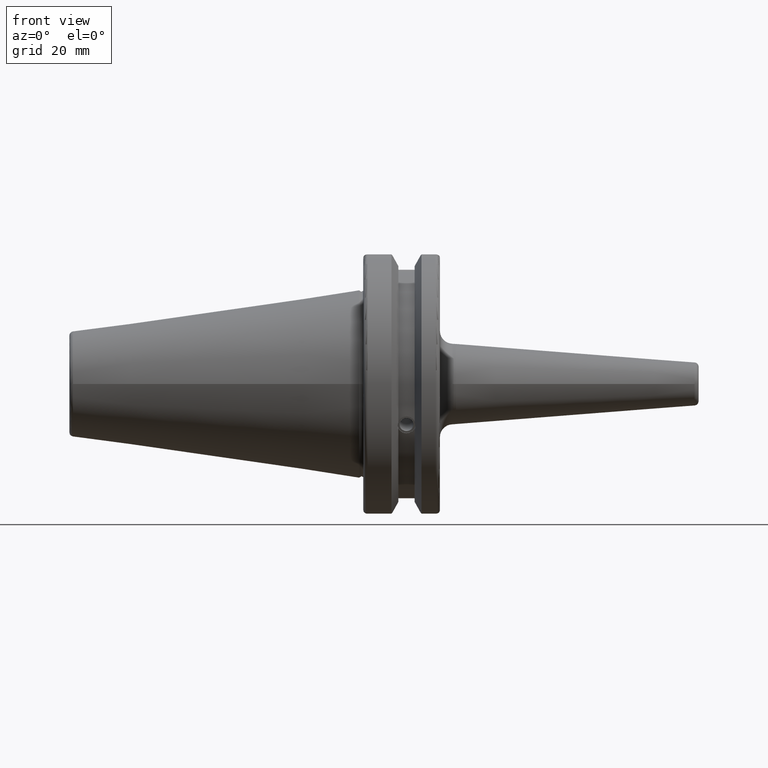
[diagram: clean part render]
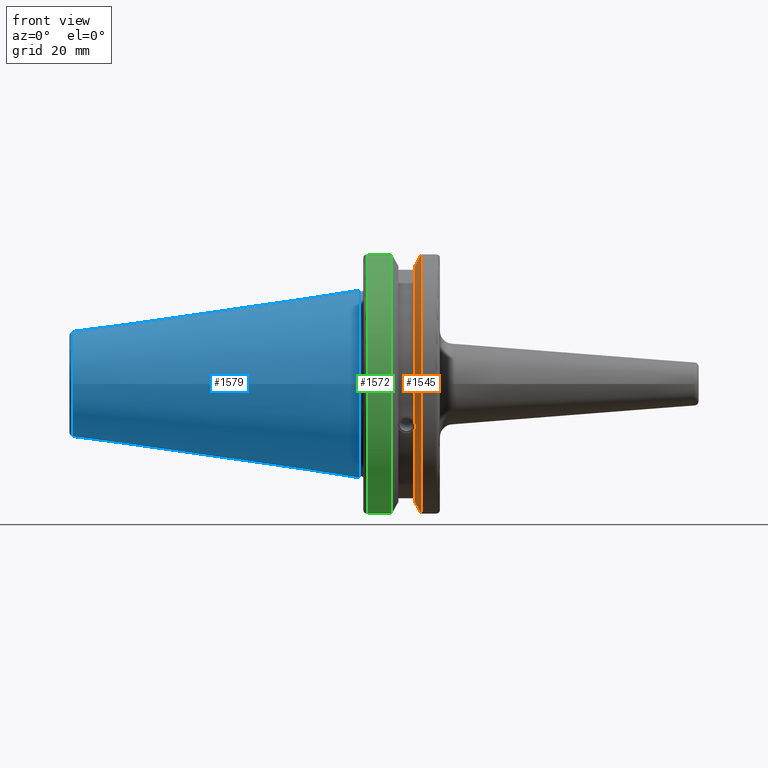
[diagram: same view with three faces highlighted in distinct colors, each labeled with its STEP entity id]
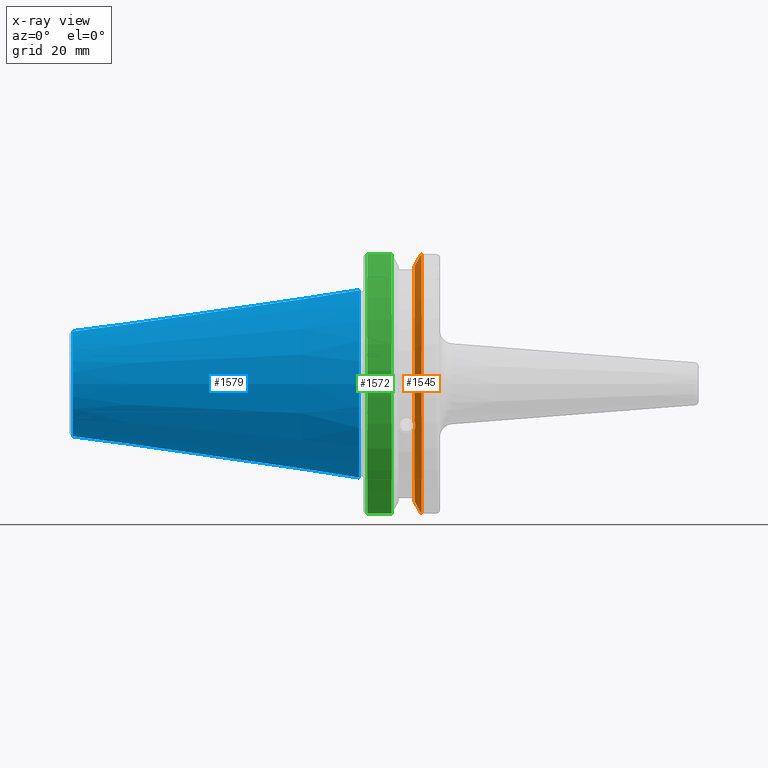
[diagram: x-ray of the same camera — body ghosted, the three highlighted faces saturated]
A machine part, front view with three faces highlighted in distinct colors.
The next image is the same camera in x-ray (body ghosted, the three faces saturated) — at least one of them is partly hidden behind the body in this view.
Their STEP definitions:

[orange] entity #1545 — the highlighted conical surface has half-angle 60 deg.
#18=(
BOUNDED_CURVE()
B_SPLINE_CURVE(2,(#2557,#2558,#2559),.UNSPECIFIED.,.F.,.F.)
B_SPLINE_CURVE_WITH_KNOTS((3,3),(0.,0.276549142796805),.UNSPECIFIED.)
CURVE()
GEOMETRIC_REPRESENTATION_ITEM()
RATIONAL_B_SPLINE_CURVE((1.,1.00095203904186,1.00031614445102))
REPRESENTATION_ITEM('')
);
#19=(
BOUNDED_CURVE()
B_SPLINE_CURVE(2,(#2561,#2562,#2563),.UNSPECIFIED.,.F.,.F.)
B_SPLINE_CURVE_WITH_KNOTS((3,3),(0.,0.0639048713676002),.UNSPECIFIED.)
CURVE()
GEOMETRIC_REPRESENTATION_ITEM()
RATIONAL_B_SPLINE_CURVE((1.,1.0002844421828,1.00047644010568))
REPRESENTATION_ITEM('')
);
#20=(
BOUNDED_CURVE()
B_SPLINE_CURVE(2,(#2567,#2568,#2569),.UNSPECIFIED.,.F.,.F.)
B_SPLINE_CURVE_WITH_KNOTS((3,3),(0.329353533631192,0.393258405001023),
 .UNSPECIFIED.)
CURVE()
GEOMETRIC_REPRESENTATION_ITEM()
RATIONAL_B_SPLINE_CURVE((1.00047644010581,1.00028444218288,1.))
REPRESENTATION_ITEM('')
);
#21=(
BOUNDED_CURVE()
B_SPLINE_CURVE(2,(#2571,#2572,#2573),.UNSPECIFIED.,.F.,.F.)
B_SPLINE_CURVE_WITH_KNOTS((3,3),(0.0550586467390284,0.331607789535849),
 .UNSPECIFIED.)
CURVE()
GEOMETRIC_REPRESENTATION_ITEM()
RATIONAL_B_SPLINE_CURVE((1.00031614445116,1.00095203904229,1.))
REPRESENTATION_ITEM('')
);
#58=B_SPLINE_CURVE_WITH_KNOTS('',3,(#2464,#2465,#2466,#2467,#2468,#2469,
#2470,#2471),.UNSPECIFIED.,.F.,.F.,(4,2,2,4),(0.451995700189026,0.46454782854766,
0.504528771685166,0.544509714822671),.UNSPECIFIED.);
#62=B_SPLINE_CURVE_WITH_KNOTS('',3,(#2526,#2527,#2528,#2529,#2530,#2531,
#2532,#2533),.UNSPECIFIED.,.F.,.F.,(4,2,2,4),(0.544509714822671,0.584490657960176,
0.624471601097681,0.637023729456314),.UNSPECIFIED.);
#364=CONICAL_SURFACE('',#1691,30.3546886482472,1.0471975511966);
#397=FACE_OUTER_BOUND('',#492,.T.);
#492=EDGE_LOOP('',(#1158,#1159,#1160,#1161,#1162,#1163,#1164,#1165,#1166));
#592=CIRCLE('',#1692,28.9593772964944);
#593=CIRCLE('',#1693,31.75);
#594=CIRCLE('',#1694,28.9593772964944);
#682=VERTEX_POINT('',#2461);
#683=VERTEX_POINT('',#2463);
#690=VERTEX_POINT('',#2524);
#696=VERTEX_POINT('',#2554);
#697=VERTEX_POINT('',#2556);
#698=VERTEX_POINT('',#2560);
#699=VERTEX_POINT('',#2564);
#700=VERTEX_POINT('',#2566);
#701=VERTEX_POINT('',#2570);
#854=EDGE_CURVE('',#683,#682,#58,.T.);
#862=EDGE_CURVE('',#682,#690,#62,.T.);
#871=EDGE_CURVE('',#690,#696,#592,.T.);
#872=EDGE_CURVE('',#696,#697,#18,.T.);
#873=EDGE_CURVE('',#698,#697,#19,.T.);
#874=EDGE_CURVE('',#699,#698,#593,.T.);
#875=EDGE_CURVE('',#700,#699,#20,.T.);
#876=EDGE_CURVE('',#700,#701,#21,.T.);
#877=EDGE_CURVE('',#701,#683,#594,.T.);
#1158=ORIENTED_EDGE('',*,*,#854,.T.);
#1159=ORIENTED_EDGE('',*,*,#862,.T.);
#1160=ORIENTED_EDGE('',*,*,#871,.T.);
#1161=ORIENTED_EDGE('',*,*,#872,.T.);
#1162=ORIENTED_EDGE('',*,*,#873,.F.);
#1163=ORIENTED_EDGE('',*,*,#874,.F.);
#1164=ORIENTED_EDGE('',*,*,#875,.F.);
#1165=ORIENTED_EDGE('',*,*,#876,.T.);
#1166=ORIENTED_EDGE('',*,*,#877,.T.);
#1545=ADVANCED_FACE('',(#397),#364,.T.);
#1691=AXIS2_PLACEMENT_3D('',#2553,#1961,#1962);
#1692=AXIS2_PLACEMENT_3D('',#2555,#1963,#1964);
#1693=AXIS2_PLACEMENT_3D('',#2565,#1965,#1966);
#1694=AXIS2_PLACEMENT_3D('',#2574,#1967,#1968);
#1961=DIRECTION('center_axis',(1.,0.,0.));
#1962=DIRECTION('ref_axis',(0.,-1.,-1.22464679914735E-16));
#1963=DIRECTION('center_axis',(1.,0.,0.));
#1964=DIRECTION('ref_axis',(0.,0.,-1.));
#1965=DIRECTION('center_axis',(1.,0.,0.));
#1966=DIRECTION('ref_axis',(0.,0.,-1.));
#1967=DIRECTION('center_axis',(1.,0.,0.));
#1968=DIRECTION('ref_axis',(0.,0.,-1.));
#2461=CARTESIAN_POINT('',(13.276,-27.51401829017,-10.0142836826777));
#2463=CARTESIAN_POINT('',(13.091,-27.4956274489925,-9.09043478536249));
#2464=CARTESIAN_POINT('Ctrl Pts',(13.091,-27.4956274489925,-9.09043478536248));
#2465=CARTESIAN_POINT('Ctrl Pts',(13.1051204071996,-27.5087667900418,-9.12860597076219));
#2466=CARTESIAN_POINT('Ctrl Pts',(13.1185929817857,-27.5206055003512,-9.16696618806878));
#2467=CARTESIAN_POINT('Ctrl Pts',(13.171981441159,-27.5642934663232,-9.32791534028655));
#2468=CARTESIAN_POINT('Ctrl Pts',(13.2101197084175,-27.5867382255984,-9.46717946402648));
#2469=CARTESIAN_POINT('Ctrl Pts',(13.2623106446058,-27.5847569104122,-9.74771639360671));
#2470=CARTESIAN_POINT('Ctrl Pts',(13.276,-27.559599249844,-9.8890510252165));
#2471=CARTESIAN_POINT('Ctrl Pts',(13.276,-27.51401829017,-10.0142836826777));
#2524=CARTESIAN_POINT('',(13.091,-26.9060914640649,-10.710171591907));
#2526=CARTESIAN_POINT('Ctrl Pts',(13.276,-27.51401829017,-10.0142836826777));
#2527=CARTESIAN_POINT('Ctrl Pts',(13.276,-27.4684373304961,-10.139516340139));
#2528=CARTESIAN_POINT('Ctrl Pts',(13.2623106446058,-27.3968610665578,-10.2639559818059));
#2529=CARTESIAN_POINT('Ctrl Pts',(13.2101197084175,-27.2180531796526,-10.4801333026531));
#2530=CARTESIAN_POINT('Ctrl Pts',(13.171981441159,-27.1113422433189,-10.5723885976054));
#2531=CARTESIAN_POINT('Ctrl Pts',(13.1185929817857,-26.9744191989197,-10.6676007180673));
#2532=CARTESIAN_POINT('Ctrl Pts',(13.1051204071996,-26.9406927482839,-10.6893765730703));
#2533=CARTESIAN_POINT('Ctrl Pts',(13.091,-26.9060914640649,-10.7101715919071));
#2553=CARTESIAN_POINT('Origin',(13.8965833845378,0.,0.));
#2554=CARTESIAN_POINT('',(13.091,-8.19,-27.7771386827498));
#2555=CARTESIAN_POINT('Origin',(13.091,0.,0.));
#2556=CARTESIAN_POINT('',(14.4234146964874,-8.19,-30.1755016258903));
#2557=CARTESIAN_POINT('Ctrl Pts',(13.091,-8.19,-27.7771386827498));
#2558=CARTESIAN_POINT('Ctrl Pts',(13.7296364384735,-8.19,-28.9303689539659));
#2559=CARTESIAN_POINT('Ctrl Pts',(14.4234146964874,-8.19,-30.1755016258903));
#2560=CARTESIAN_POINT('',(14.7021667690756,-8.67204822802685,-30.5427254764662));
#2561=CARTESIAN_POINT('Ctrl Pts',(14.7021667690756,-8.67204822802686,-30.5427254764662));
#2562=CARTESIAN_POINT('Ctrl Pts',(14.5611085187837,-8.42917748262647,-30.357706789263));
#2563=CARTESIAN_POINT('Ctrl Pts',(14.4234146964874,-8.19,-30.1755016258903));
#2564=CARTESIAN_POINT('',(14.7021667690756,-8.67204822802685,30.5427254764662));
#2565=CARTESIAN_POINT('Origin',(14.7021667690756,0.,0.));
#2566=CARTESIAN_POINT('',(14.4234146964874,-8.19,30.1755016258903));
#2567=CARTESIAN_POINT('Ctrl Pts',(14.4234146964874,-8.19,30.1755016258903));
#2568=CARTESIAN_POINT('Ctrl Pts',(14.5611085187884,-8.42917748263466,30.3577067892692));
#2569=CARTESIAN_POINT('Ctrl Pts',(14.7021667690756,-8.67204822802685,30.5427254764662));
#2570=CARTESIAN_POINT('',(13.091,-8.19,27.7771386827498));
#2571=CARTESIAN_POINT('Ctrl Pts',(14.4234146964874,-8.19,30.1755016258903));
#2572=CARTESIAN_POINT('Ctrl Pts',(13.7296364384736,-8.19,28.9303689539661));
#2573=CARTESIAN_POINT('Ctrl Pts',(13.091,-8.19,27.7771386827498));
#2574=CARTESIAN_POINT('Origin',(13.091,0.,0.));

[blue] entity #1579 — the highlighted conical surface has half-angle 8.297 deg.
#239=LINE('',#2975,#337);
#337=VECTOR('',#2161,17.2484375);
#368=CONICAL_SURFACE('',#1766,17.2484375,0.144812498238939);
#431=FACE_OUTER_BOUND('',#531,.T.);
#531=EDGE_LOOP('',(#1362,#1363,#1364,#1365,#1366));
#619=CIRCLE('',#1760,12.3966635780937);
#620=CIRCLE('',#1761,12.3966635780937);
#624=CIRCLE('',#1767,22.225);
#777=VERTEX_POINT('',#2962);
#778=VERTEX_POINT('',#2963);
#781=VERTEX_POINT('',#2973);
#988=EDGE_CURVE('',#777,#778,#619,.T.);
#989=EDGE_CURVE('',#778,#777,#620,.T.);
#993=EDGE_CURVE('',#781,#781,#624,.T.);
#994=EDGE_CURVE('',#781,#778,#239,.T.);
#1362=ORIENTED_EDGE('',*,*,#993,.F.);
#1363=ORIENTED_EDGE('',*,*,#994,.T.);
#1364=ORIENTED_EDGE('',*,*,#988,.F.);
#1365=ORIENTED_EDGE('',*,*,#989,.F.);
#1366=ORIENTED_EDGE('',*,*,#994,.F.);
#1579=ADVANCED_FACE('',(#431),#368,.T.);
#1760=AXIS2_PLACEMENT_3D('',#2964,#2145,#2146);
#1761=AXIS2_PLACEMENT_3D('',#2965,#2147,#2148);
#1766=AXIS2_PLACEMENT_3D('',#2972,#2157,#2158);
#1767=AXIS2_PLACEMENT_3D('',#2974,#2159,#2160);
#2145=DIRECTION('center_axis',(-1.,0.,0.));
#2146=DIRECTION('ref_axis',(0.,-1.,3.06161699786838E-17));
#2147=DIRECTION('center_axis',(-1.,0.,0.));
#2148=DIRECTION('ref_axis',(0.,-1.,3.06161699786838E-17));
#2157=DIRECTION('center_axis',(1.,0.,0.));
#2158=DIRECTION('ref_axis',(0.,1.,0.));
#2159=DIRECTION('center_axis',(1.,0.,0.));
#2160=DIRECTION('ref_axis',(0.,0.,-1.));
#2161=DIRECTION('',(-0.989532981063282,0.144306893071729,1.76724974695192E-17));
#2962=CARTESIAN_POINT('',(-67.3943068930717,-1.5181534371019E-15,12.3966635780937));
#2963=CARTESIAN_POINT('',(-67.3943068930718,-12.3966635780937,-1.5181534371019E-15));
#2964=CARTESIAN_POINT('Origin',(-67.3943068930717,0.,-1.89769179637738E-15));
#2965=CARTESIAN_POINT('Origin',(-67.3943068930717,0.,-1.89769179637738E-15));
#2972=CARTESIAN_POINT('Origin',(-34.125,0.,0.));
#2973=CARTESIAN_POINT('',(0.,-22.225,-2.72177751110499E-15));
#2974=CARTESIAN_POINT('Origin',(0.,0.,0.));
#2975=CARTESIAN_POINT('',(-34.125,-17.2484375,-2.11232437746682E-15));

[green] entity #1572 — the highlighted cylindrical surface (partial cylindrical patch) has radius 31.75 mm, axis along (1, 0, 0).
#104=CYLINDRICAL_SURFACE('',#1750,31.75);
#228=LINE('',#2901,#326);
#229=LINE('',#2907,#327);
#326=VECTOR('',#2114,10.);
#327=VECTOR('',#2117,10.);
#424=FACE_OUTER_BOUND('',#521,.T.);
#521=EDGE_LOOP('',(#1321,#1322,#1323,#1324));
#613=CIRCLE('',#1747,31.75);
#615=CIRCLE('',#1751,31.75);
#762=VERTEX_POINT('',#2879);
#763=VERTEX_POINT('',#2888);
#764=VERTEX_POINT('',#2900);
#765=VERTEX_POINT('',#2906);
#965=EDGE_CURVE('',#762,#763,#613,.T.);
#968=EDGE_CURVE('',#763,#764,#228,.T.);
#970=EDGE_CURVE('',#765,#762,#229,.T.);
#971=EDGE_CURVE('',#764,#765,#615,.T.);
#1321=ORIENTED_EDGE('',*,*,#965,.F.);
#1322=ORIENTED_EDGE('',*,*,#970,.F.);
#1323=ORIENTED_EDGE('',*,*,#971,.F.);
#1324=ORIENTED_EDGE('',*,*,#968,.F.);
#1572=ADVANCED_FACE('',(#424),#104,.T.);
#1747=AXIS2_PLACEMENT_3D('',#2889,#2108,#2109);
#1750=AXIS2_PLACEMENT_3D('',#2905,#2115,#2116);
#1751=AXIS2_PLACEMENT_3D('',#2908,#2118,#2119);
#2108=DIRECTION('center_axis',(-1.,0.,0.));
#2109=DIRECTION('ref_axis',(0.,-1.,1.60812264967664E-16));
#2114=DIRECTION('',(1.,0.,0.));
#2115=DIRECTION('center_axis',(1.,0.,0.));
#2116=DIRECTION('ref_axis',(0.,-1.,1.22464679914735E-16));
#2117=DIRECTION('',(-1.,0.,0.));
#2118=DIRECTION('center_axis',(1.,0.,0.));
#2119=DIRECTION('ref_axis',(0.,0.,-1.));
#2879=CARTESIAN_POINT('',(2.,-8.67204822802685,-30.5427254764662));
#2888=CARTESIAN_POINT('',(2.,-8.67204822802685,30.5427254764662));
#2889=CARTESIAN_POINT('Origin',(2.,0.,0.));
#2900=CARTESIAN_POINT('',(7.64983323092436,-8.67204822802685,30.5427254764662));
#2901=CARTESIAN_POINT('',(4.32491661546218,-8.67204822802685,30.5427254764662));
#2905=CARTESIAN_POINT('Origin',(4.32491661546218,0.,0.));
#2906=CARTESIAN_POINT('',(7.64983323092436,-8.67204822802685,-30.5427254764662));
#2907=CARTESIAN_POINT('',(4.32491661546218,-8.67204822802685,-30.5427254764662));
#2908=CARTESIAN_POINT('Origin',(7.64983323092436,0.,0.));